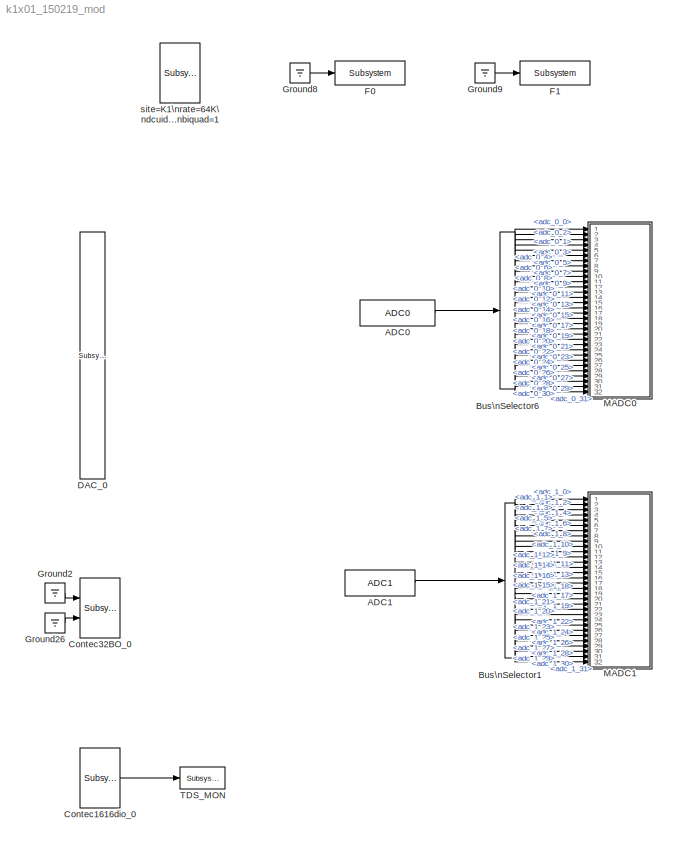
MODEL k1x01_150219_mod
KIND model
BLOCK [Reference] ADC0  REF=cdsAdcx0/ADC0
  AttributesFormatString = %<Description>\\n%<Tag>
  Description = type-GSC_16AI64SSA\ncard_num=0
  Ports = [0, 1]
  SID = 960
  SourceBlock = cdsAdcx0/ADC0
  SourceType = SubSystem
  Tag = cdsAdc
BLOCK [Reference] ADC1  REF=cdsAdcx1/ADC1
  AttributesFormatString = %<Description>\\n%<Tag>
  Description = type-GSC_16AI64SSA\ncard_num=1
  Ports = [0, 1]
  SID = 1073
  SourceBlock = cdsAdcx1/ADC1
  SourceType = SubSystem
  Tag = cdsAdc
BLOCK [BusSelector] Bus\nSelector1
  AttributesFormatString = %<Description>
  Description = ADC Selector
  OutputSignals = adc_1_0,adc_1_1,adc_1_2,adc_1_3,adc_1_4,adc_1_5,adc_1_6,adc_1_7,adc_1_8,adc_1_9,adc_1_10,adc_1_11,adc_1_12,adc_1_13,adc_1_14,adc_1_15,adc_1_16,adc_1_17,adc_1_18,adc_1_19,adc_1_20,adc_1_21,adc_1_22,adc_1_23,adc_1_24,adc_1_25,adc_1_26,adc_1_27,adc_1_28,adc_1_29,adc_1_30,adc_1_31
  Ports = [1, 32]
  SID = 1074
BLOCK [BusSelector] Bus\nSelector6
  AttributesFormatString = %<Description>
  Description = ADC Selector
  OutputSignals = adc_0_0,adc_0_1,adc_0_2,adc_0_3,adc_0_4,adc_0_5,adc_0_6,adc_0_7,adc_0_8,adc_0_9,adc_0_10,adc_0_11,adc_0_12,adc_0_13,adc_0_14,adc_0_15,adc_0_16,adc_0_17,adc_0_18,adc_0_19,adc_0_20,adc_0_21,adc_0_22,adc_0_23,adc_0_24,adc_0_25,adc_0_26,adc_0_27,adc_0_28,adc_0_29,adc_0_30,adc_0_31
  Ports = [1, 32]
  SID = 961
BLOCK [Reference] Contec1616dio_0  REF=cdsContec1616DIO/Subsystem
  AttributesFormatString = %<Tag>
  Ports = [1, 1]
  SID = 1070
  SourceBlock = cdsContec1616DIO/Subsystem
  SourceType = SubSystem
  Tag = cdsCDIO1616
BLOCK [Reference] Contec32BO_0  REF=cdsCDO32/Subsystem
  AttributesFormatString = %<Tag>
  Description = Contec32 bit binary output module driver
  Ports = [2]
  SID = 1066
  SourceBlock = cdsCDO32/Subsystem
  SourceType = SubSystem
  Tag = cdsCDO32
BLOCK [Reference] DAC_0  REF=dac/Subsystem  (lib defined in slx_40ef132df75b, slx_b7657ccccc5b, +4 more)
  AttributesFormatString = %<Description>
  Description = card_num=0
  Ports = [16]
  SID = 1067
  SourceBlock = dac/Subsystem
  SourceType = SubSystem
BLOCK [Reference] F0  REF=cdsFilt/Subsystem
  AttributesFormatString = %<Tag>
  Description = Purpose:                                                                                                                                                                                                                                  \nStandard CDS IIR filter module.                                                                                                                                     ...<+1302ch>
  Ports = [1, 1]
  SID = 962
  SourceBlock = cdsFilt/Subsystem
  SourceType = SubSystem
  Tag = cdsFilt
BLOCK [Reference] F1  REF=cdsFilt/Subsystem
  AttributesFormatString = %<Tag>
  Description = Purpose:                                                                                                                                                                                                                                  \nStandard CDS IIR filter module.                                                                                                                                     ...<+1302ch>
  Ports = [1, 1]
  SID = 963
  SourceBlock = cdsFilt/Subsystem
  SourceType = SubSystem
  Tag = cdsFilt
BLOCK [Ground] Ground2
  SID = 1068
BLOCK [Ground] Ground26
  SID = 1069
BLOCK [Ground] Ground8
  SID = 964
BLOCK [Ground] Ground9
  SID = 965
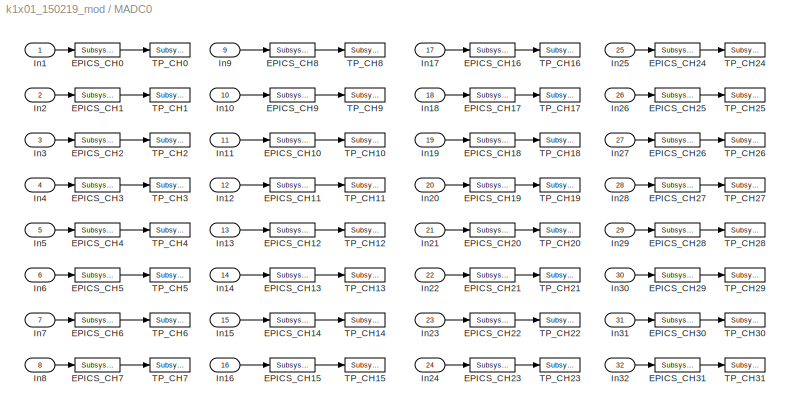
BLOCK [SubSystem] MADC0
  FunctionWithSeparateData = off
  MaskHideContents = off
  MinAlgLoopOccurrences = off
  Opaque = off
  Ports = [32]
  PropExecContextOutsideSubsystem = off
  RTWSystemCode = Auto
  RequestExecContextInheritance = off
  SID = 966
BLOCK [Reference] MADC0/EPICS_CH0  REF=cdsEpicsOut/Subsystem
  AttributesFormatString = %<Tag>
  Description = Purpose:                                          \nOutput a FE signal to an EPICS channel.           \n                                                  \nOperation:                                        \nTakes input value and passes it to EPICS record.  \n                                                  \nUsage:                                            \nName the part with the desired EPICS...<+14ch>  <repeated x65 — deduplicated; at blocks: EPICS_CH0, EPICS_CH1, EPICS_CH10, EPICS_CH11, EPICS_CH12, EPICS_CH13, EPICS_CH14, EPICS_CH15, EPICS_CH16, EPICS_CH17, EPICS_CH18, EPICS_CH19, EPICS_CH2, EPICS_CH20, EPICS_CH21, EPICS_CH22, +49 more>
  Ports = [1, 1]
  SID = 999
  SourceBlock = cdsEpicsOut/Subsystem
  SourceType = SubSystem
  Tag = cdsEpicsOutput
BLOCK [Reference] MADC0/EPICS_CH1  REF=cdsEpicsOut/Subsystem
  AttributesFormatString = %<Tag>
  Ports = [1, 1]
  SID = 1000
  SourceBlock = cdsEpicsOut/Subsystem
  SourceType = SubSystem
  Tag = cdsEpicsOutput
BLOCK [Reference] MADC0/EPICS_CH10  REF=cdsEpicsOut/Subsystem
  AttributesFormatString = %<Tag>
  Ports = [1, 1]
  SID = 1001
  SourceBlock = cdsEpicsOut/Subsystem
  SourceType = SubSystem
  Tag = cdsEpicsOutput
BLOCK [Reference] MADC0/EPICS_CH11  REF=cdsEpicsOut/Subsystem
  AttributesFormatString = %<Tag>
  Ports = [1, 1]
  SID = 1002
  SourceBlock = cdsEpicsOut/Subsystem
  SourceType = SubSystem
  Tag = cdsEpicsOutput
BLOCK [Reference] MADC0/EPICS_CH12  REF=cdsEpicsOut/Subsystem
  AttributesFormatString = %<Tag>
  Ports = [1, 1]
  SID = 1003
  SourceBlock = cdsEpicsOut/Subsystem
  SourceType = SubSystem
  Tag = cdsEpicsOutput
BLOCK [Reference] MADC0/EPICS_CH13  REF=cdsEpicsOut/Subsystem
  AttributesFormatString = %<Tag>
  Ports = [1, 1]
  SID = 1004
  SourceBlock = cdsEpicsOut/Subsystem
  SourceType = SubSystem
  Tag = cdsEpicsOutput
BLOCK [Reference] MADC0/EPICS_CH14  REF=cdsEpicsOut/Subsystem
  AttributesFormatString = %<Tag>
  Ports = [1, 1]
  SID = 1005
  SourceBlock = cdsEpicsOut/Subsystem
  SourceType = SubSystem
  Tag = cdsEpicsOutput
BLOCK [Reference] MADC0/EPICS_CH15  REF=cdsEpicsOut/Subsystem
  AttributesFormatString = %<Tag>
  Ports = [1, 1]
  SID = 1006
  SourceBlock = cdsEpicsOut/Subsystem
  SourceType = SubSystem
  Tag = cdsEpicsOutput
BLOCK [Reference] MADC0/EPICS_CH16  REF=cdsEpicsOut/Subsystem
  AttributesFormatString = %<Tag>
  Ports = [1, 1]
  SID = 1007
  SourceBlock = cdsEpicsOut/Subsystem
  SourceType = SubSystem
  Tag = cdsEpicsOutput
BLOCK [Reference] MADC0/EPICS_CH17  REF=cdsEpicsOut/Subsystem
  AttributesFormatString = %<Tag>
  Ports = [1, 1]
  SID = 1008
  SourceBlock = cdsEpicsOut/Subsystem
  SourceType = SubSystem
  Tag = cdsEpicsOutput
BLOCK [Reference] MADC0/EPICS_CH18  REF=cdsEpicsOut/Subsystem
  AttributesFormatString = %<Tag>
  Ports = [1, 1]
  SID = 1009
  SourceBlock = cdsEpicsOut/Subsystem
  SourceType = SubSystem
  Tag = cdsEpicsOutput
BLOCK [Reference] MADC0/EPICS_CH19  REF=cdsEpicsOut/Subsystem
  AttributesFormatString = %<Tag>
  Ports = [1, 1]
  SID = 1010
  SourceBlock = cdsEpicsOut/Subsystem
  SourceType = SubSystem
  Tag = cdsEpicsOutput
BLOCK [Reference] MADC0/EPICS_CH2  REF=cdsEpicsOut/Subsystem
  AttributesFormatString = %<Tag>
  Ports = [1, 1]
  SID = 1011
  SourceBlock = cdsEpicsOut/Subsystem
  SourceType = SubSystem
  Tag = cdsEpicsOutput
BLOCK [Reference] MADC0/EPICS_CH20  REF=cdsEpicsOut/Subsystem
  AttributesFormatString = %<Tag>
  Ports = [1, 1]
  SID = 1012
  SourceBlock = cdsEpicsOut/Subsystem
  SourceType = SubSystem
  Tag = cdsEpicsOutput
BLOCK [Reference] MADC0/EPICS_CH21  REF=cdsEpicsOut/Subsystem
  AttributesFormatString = %<Tag>
  Ports = [1, 1]
  SID = 1013
  SourceBlock = cdsEpicsOut/Subsystem
  SourceType = SubSystem
  Tag = cdsEpicsOutput
BLOCK [Reference] MADC0/EPICS_CH22  REF=cdsEpicsOut/Subsystem
  AttributesFormatString = %<Tag>
  Ports = [1, 1]
  SID = 1014
  SourceBlock = cdsEpicsOut/Subsystem
  SourceType = SubSystem
  Tag = cdsEpicsOutput
BLOCK [Reference] MADC0/EPICS_CH23  REF=cdsEpicsOut/Subsystem
  AttributesFormatString = %<Tag>
  Ports = [1, 1]
  SID = 1015
  SourceBlock = cdsEpicsOut/Subsystem
  SourceType = SubSystem
  Tag = cdsEpicsOutput
BLOCK [Reference] MADC0/EPICS_CH24  REF=cdsEpicsOut/Subsystem
  AttributesFormatString = %<Tag>
  Ports = [1, 1]
  SID = 1016
  SourceBlock = cdsEpicsOut/Subsystem
  SourceType = SubSystem
  Tag = cdsEpicsOutput
BLOCK [Reference] MADC0/EPICS_CH25  REF=cdsEpicsOut/Subsystem
  AttributesFormatString = %<Tag>
  Ports = [1, 1]
  SID = 1017
  SourceBlock = cdsEpicsOut/Subsystem
  SourceType = SubSystem
  Tag = cdsEpicsOutput
BLOCK [Reference] MADC0/EPICS_CH26  REF=cdsEpicsOut/Subsystem
  AttributesFormatString = %<Tag>
  Ports = [1, 1]
  SID = 1018
  SourceBlock = cdsEpicsOut/Subsystem
  SourceType = SubSystem
  Tag = cdsEpicsOutput
BLOCK [Reference] MADC0/EPICS_CH27  REF=cdsEpicsOut/Subsystem
  AttributesFormatString = %<Tag>
  Ports = [1, 1]
  SID = 1019
  SourceBlock = cdsEpicsOut/Subsystem
  SourceType = SubSystem
  Tag = cdsEpicsOutput
BLOCK [Reference] MADC0/EPICS_CH28  REF=cdsEpicsOut/Subsystem
  AttributesFormatString = %<Tag>
  Ports = [1, 1]
  SID = 1020
  SourceBlock = cdsEpicsOut/Subsystem
  SourceType = SubSystem
  Tag = cdsEpicsOutput
BLOCK [Reference] MADC0/EPICS_CH29  REF=cdsEpicsOut/Subsystem
  AttributesFormatString = %<Tag>
  Ports = [1, 1]
  SID = 1021
  SourceBlock = cdsEpicsOut/Subsystem
  SourceType = SubSystem
  Tag = cdsEpicsOutput
BLOCK [Reference] MADC0/EPICS_CH3  REF=cdsEpicsOut/Subsystem
  AttributesFormatString = %<Tag>
  Ports = [1, 1]
  SID = 1022
  SourceBlock = cdsEpicsOut/Subsystem
  SourceType = SubSystem
  Tag = cdsEpicsOutput
BLOCK [Reference] MADC0/EPICS_CH30  REF=cdsEpicsOut/Subsystem
  AttributesFormatString = %<Tag>
  Ports = [1, 1]
  SID = 1023
  SourceBlock = cdsEpicsOut/Subsystem
  SourceType = SubSystem
  Tag = cdsEpicsOutput
BLOCK [Reference] MADC0/EPICS_CH31  REF=cdsEpicsOut/Subsystem
  AttributesFormatString = %<Tag>
  Ports = [1, 1]
  SID = 1024
  SourceBlock = cdsEpicsOut/Subsystem
  SourceType = SubSystem
  Tag = cdsEpicsOutput
BLOCK [Reference] MADC0/EPICS_CH4  REF=cdsEpicsOut/Subsystem
  AttributesFormatString = %<Tag>
  Ports = [1, 1]
  SID = 1025
  SourceBlock = cdsEpicsOut/Subsystem
  SourceType = SubSystem
  Tag = cdsEpicsOutput
BLOCK [Reference] MADC0/EPICS_CH5  REF=cdsEpicsOut/Subsystem
  AttributesFormatString = %<Tag>
  Ports = [1, 1]
  SID = 1026
  SourceBlock = cdsEpicsOut/Subsystem
  SourceType = SubSystem
  Tag = cdsEpicsOutput
BLOCK [Reference] MADC0/EPICS_CH6  REF=cdsEpicsOut/Subsystem
  AttributesFormatString = %<Tag>
  Ports = [1, 1]
  SID = 1027
  SourceBlock = cdsEpicsOut/Subsystem
  SourceType = SubSystem
  Tag = cdsEpicsOutput
BLOCK [Reference] MADC0/EPICS_CH7  REF=cdsEpicsOut/Subsystem
  AttributesFormatString = %<Tag>
  Ports = [1, 1]
  SID = 1028
  SourceBlock = cdsEpicsOut/Subsystem
  SourceType = SubSystem
  Tag = cdsEpicsOutput
BLOCK [Reference] MADC0/EPICS_CH8  REF=cdsEpicsOut/Subsystem
  AttributesFormatString = %<Tag>
  Ports = [1, 1]
  SID = 1029
  SourceBlock = cdsEpicsOut/Subsystem
  SourceType = SubSystem
  Tag = cdsEpicsOutput
BLOCK [Reference] MADC0/EPICS_CH9  REF=cdsEpicsOut/Subsystem
  AttributesFormatString = %<Tag>
  Ports = [1, 1]
  SID = 1030
  SourceBlock = cdsEpicsOut/Subsystem
  SourceType = SubSystem
  Tag = cdsEpicsOutput
BLOCK [Inport] MADC0/In1
  IconDisplay = Port number
  SID = 967
BLOCK [Inport] MADC0/In10
  IconDisplay = Port number
  Port = 10
  SID = 976
BLOCK [Inport] MADC0/In11
  IconDisplay = Port number
  Port = 11
  SID = 977
BLOCK [Inport] MADC0/In12
  IconDisplay = Port number
  Port = 12
  SID = 978
BLOCK [Inport] MADC0/In13
  IconDisplay = Port number
  Port = 13
  SID = 979
BLOCK [Inport] MADC0/In14
  IconDisplay = Port number
  Port = 14
  SID = 980
BLOCK [Inport] MADC0/In15
  IconDisplay = Port number
  Port = 15
  SID = 981
BLOCK [Inport] MADC0/In16
  IconDisplay = Port number
  Port = 16
  SID = 982
BLOCK [Inport] MADC0/In17
  IconDisplay = Port number
  Port = 17
  SID = 983
BLOCK [Inport] MADC0/In18
  IconDisplay = Port number
  Port = 18
  SID = 984
BLOCK [Inport] MADC0/In19
  IconDisplay = Port number
  Port = 19
  SID = 985
BLOCK [Inport] MADC0/In2
  IconDisplay = Port number
  Port = 2
  SID = 968
BLOCK [Inport] MADC0/In20
  IconDisplay = Port number
  Port = 20
  SID = 986
BLOCK [Inport] MADC0/In21
  IconDisplay = Port number
  Port = 21
  SID = 987
BLOCK [Inport] MADC0/In22
  IconDisplay = Port number
  Port = 22
  SID = 988
BLOCK [Inport] MADC0/In23
  IconDisplay = Port number
  Port = 23
  SID = 989
BLOCK [Inport] MADC0/In24
  IconDisplay = Port number
  Port = 24
  SID = 990
BLOCK [Inport] MADC0/In25
  IconDisplay = Port number
  Port = 25
  SID = 991
BLOCK [Inport] MADC0/In26
  IconDisplay = Port number
  Port = 26
  SID = 992
BLOCK [Inport] MADC0/In27
  IconDisplay = Port number
  Port = 27
  SID = 993
BLOCK [Inport] MADC0/In28
  IconDisplay = Port number
  Port = 28
  SID = 994
BLOCK [Inport] MADC0/In29
  IconDisplay = Port number
  Port = 29
  SID = 995
BLOCK [Inport] MADC0/In3
  IconDisplay = Port number
  Port = 3
  SID = 969
BLOCK [Inport] MADC0/In30
  IconDisplay = Port number
  Port = 30
  SID = 996
BLOCK [Inport] MADC0/In31
  IconDisplay = Port number
  Port = 31
  SID = 997
BLOCK [Inport] MADC0/In32
  IconDisplay = Port number
  Port = 32
  SID = 998
BLOCK [Inport] MADC0/In4
  IconDisplay = Port number
  Port = 4
  SID = 970
BLOCK [Inport] MADC0/In5
  IconDisplay = Port number
  Port = 5
  SID = 971
BLOCK [Inport] MADC0/In6
  IconDisplay = Port number
  Port = 6
  SID = 972
BLOCK [Inport] MADC0/In7
  IconDisplay = Port number
  Port = 7
  SID = 973
BLOCK [Inport] MADC0/In8
  IconDisplay = Port number
  Port = 8
  SID = 974
BLOCK [Inport] MADC0/In9
  IconDisplay = Port number
  Port = 9
  SID = 975
BLOCK [Reference] MADC0/TP_CH0  REF=cdsTP/Subsystem
  AttributesFormatString = %<Tag>
  Ports = [1]
  SID = 1031
  SourceBlock = cdsTP/Subsystem
  SourceType = SubSystem
  Tag = Test Point
BLOCK [Reference] MADC0/TP_CH1  REF=cdsTP/Subsystem
  AttributesFormatString = %<Tag>
  Ports = [1]
  SID = 1032
  SourceBlock = cdsTP/Subsystem
  SourceType = SubSystem
  Tag = Test Point
BLOCK [Reference] MADC0/TP_CH10  REF=cdsTP/Subsystem
  AttributesFormatString = %<Tag>
  Ports = [1]
  SID = 1033
  SourceBlock = cdsTP/Subsystem
  SourceType = SubSystem
  Tag = Test Point
BLOCK [Reference] MADC0/TP_CH11  REF=cdsTP/Subsystem
  AttributesFormatString = %<Tag>
  Ports = [1]
  SID = 1034
  SourceBlock = cdsTP/Subsystem
  SourceType = SubSystem
  Tag = Test Point
BLOCK [Reference] MADC0/TP_CH12  REF=cdsTP/Subsystem
  AttributesFormatString = %<Tag>
  Ports = [1]
  SID = 1035
  SourceBlock = cdsTP/Subsystem
  SourceType = SubSystem
  Tag = Test Point
BLOCK [Reference] MADC0/TP_CH13  REF=cdsTP/Subsystem
  AttributesFormatString = %<Tag>
  Ports = [1]
  SID = 1036
  SourceBlock = cdsTP/Subsystem
  SourceType = SubSystem
  Tag = Test Point
BLOCK [Reference] MADC0/TP_CH14  REF=cdsTP/Subsystem
  AttributesFormatString = %<Tag>
  Ports = [1]
  SID = 1037
  SourceBlock = cdsTP/Subsystem
  SourceType = SubSystem
  Tag = Test Point
BLOCK [Reference] MADC0/TP_CH15  REF=cdsTP/Subsystem
  AttributesFormatString = %<Tag>
  Ports = [1]
  SID = 1038
  SourceBlock = cdsTP/Subsystem
  SourceType = SubSystem
  Tag = Test Point
BLOCK [Reference] MADC0/TP_CH16  REF=cdsTP/Subsystem
  AttributesFormatString = %<Tag>
  Ports = [1]
  SID = 1039
  SourceBlock = cdsTP/Subsystem
  SourceType = SubSystem
  Tag = Test Point
BLOCK [Reference] MADC0/TP_CH17  REF=cdsTP/Subsystem
  AttributesFormatString = %<Tag>
  Ports = [1]
  SID = 1040
  SourceBlock = cdsTP/Subsystem
  SourceType = SubSystem
  Tag = Test Point
BLOCK [Reference] MADC0/TP_CH18  REF=cdsTP/Subsystem
  AttributesFormatString = %<Tag>
  Ports = [1]
  SID = 1041
  SourceBlock = cdsTP/Subsystem
  SourceType = SubSystem
  Tag = Test Point
BLOCK [Reference] MADC0/TP_CH19  REF=cdsTP/Subsystem
  AttributesFormatString = %<Tag>
  Ports = [1]
  SID = 1042
  SourceBlock = cdsTP/Subsystem
  SourceType = SubSystem
  Tag = Test Point
BLOCK [Reference] MADC0/TP_CH2  REF=cdsTP/Subsystem
  AttributesFormatString = %<Tag>
  Ports = [1]
  SID = 1043
  SourceBlock = cdsTP/Subsystem
  SourceType = SubSystem
  Tag = Test Point
BLOCK [Reference] MADC0/TP_CH20  REF=cdsTP/Subsystem
  AttributesFormatString = %<Tag>
  Ports = [1]
  SID = 1044
  SourceBlock = cdsTP/Subsystem
  SourceType = SubSystem
  Tag = Test Point
BLOCK [Reference] MADC0/TP_CH21  REF=cdsTP/Subsystem
  AttributesFormatString = %<Tag>
  Ports = [1]
  SID = 1045
  SourceBlock = cdsTP/Subsystem
  SourceType = SubSystem
  Tag = Test Point
BLOCK [Reference] MADC0/TP_CH22  REF=cdsTP/Subsystem
  AttributesFormatString = %<Tag>
  Ports = [1]
  SID = 1046
  SourceBlock = cdsTP/Subsystem
  SourceType = SubSystem
  Tag = Test Point
BLOCK [Reference] MADC0/TP_CH23  REF=cdsTP/Subsystem
  AttributesFormatString = %<Tag>
  Ports = [1]
  SID = 1047
  SourceBlock = cdsTP/Subsystem
  SourceType = SubSystem
  Tag = Test Point
BLOCK [Reference] MADC0/TP_CH24  REF=cdsTP/Subsystem
  AttributesFormatString = %<Tag>
  Ports = [1]
  SID = 1048
  SourceBlock = cdsTP/Subsystem
  SourceType = SubSystem
  Tag = Test Point
BLOCK [Reference] MADC0/TP_CH25  REF=cdsTP/Subsystem
  AttributesFormatString = %<Tag>
  Ports = [1]
  SID = 1049
  SourceBlock = cdsTP/Subsystem
  SourceType = SubSystem
  Tag = Test Point
BLOCK [Reference] MADC0/TP_CH26  REF=cdsTP/Subsystem
  AttributesFormatString = %<Tag>
  Ports = [1]
  SID = 1050
  SourceBlock = cdsTP/Subsystem
  SourceType = SubSystem
  Tag = Test Point
BLOCK [Reference] MADC0/TP_CH27  REF=cdsTP/Subsystem
  AttributesFormatString = %<Tag>
  Ports = [1]
  SID = 1051
  SourceBlock = cdsTP/Subsystem
  SourceType = SubSystem
  Tag = Test Point
BLOCK [Reference] MADC0/TP_CH28  REF=cdsTP/Subsystem
  AttributesFormatString = %<Tag>
  Ports = [1]
  SID = 1052
  SourceBlock = cdsTP/Subsystem
  SourceType = SubSystem
  Tag = Test Point
BLOCK [Reference] MADC0/TP_CH29  REF=cdsTP/Subsystem
  AttributesFormatString = %<Tag>
  Ports = [1]
  SID = 1053
  SourceBlock = cdsTP/Subsystem
  SourceType = SubSystem
  Tag = Test Point
BLOCK [Reference] MADC0/TP_CH3  REF=cdsTP/Subsystem
  AttributesFormatString = %<Tag>
  Ports = [1]
  SID = 1054
  SourceBlock = cdsTP/Subsystem
  SourceType = SubSystem
  Tag = Test Point
BLOCK [Reference] MADC0/TP_CH30  REF=cdsTP/Subsystem
  AttributesFormatString = %<Tag>
  Ports = [1]
  SID = 1055
  SourceBlock = cdsTP/Subsystem
  SourceType = SubSystem
  Tag = Test Point
BLOCK [Reference] MADC0/TP_CH31  REF=cdsTP/Subsystem
  AttributesFormatString = %<Tag>
  Ports = [1]
  SID = 1056
  SourceBlock = cdsTP/Subsystem
  SourceType = SubSystem
  Tag = Test Point
BLOCK [Reference] MADC0/TP_CH4  REF=cdsTP/Subsystem
  AttributesFormatString = %<Tag>
  Ports = [1]
  SID = 1057
  SourceBlock = cdsTP/Subsystem
  SourceType = SubSystem
  Tag = Test Point
BLOCK [Reference] MADC0/TP_CH5  REF=cdsTP/Subsystem
  AttributesFormatString = %<Tag>
  Ports = [1]
  SID = 1058
  SourceBlock = cdsTP/Subsystem
  SourceType = SubSystem
  Tag = Test Point
BLOCK [Reference] MADC0/TP_CH6  REF=cdsTP/Subsystem
  AttributesFormatString = %<Tag>
  Ports = [1]
  SID = 1059
  SourceBlock = cdsTP/Subsystem
  SourceType = SubSystem
  Tag = Test Point
BLOCK [Reference] MADC0/TP_CH7  REF=cdsTP/Subsystem
  AttributesFormatString = %<Tag>
  Ports = [1]
  SID = 1060
  SourceBlock = cdsTP/Subsystem
  SourceType = SubSystem
  Tag = Test Point
BLOCK [Reference] MADC0/TP_CH8  REF=cdsTP/Subsystem
  AttributesFormatString = %<Tag>
  Ports = [1]
  SID = 1061
  SourceBlock = cdsTP/Subsystem
  SourceType = SubSystem
  Tag = Test Point
BLOCK [Reference] MADC0/TP_CH9  REF=cdsTP/Subsystem
  AttributesFormatString = %<Tag>
  Ports = [1]
  SID = 1062
  SourceBlock = cdsTP/Subsystem
  SourceType = SubSystem
  Tag = Test Point
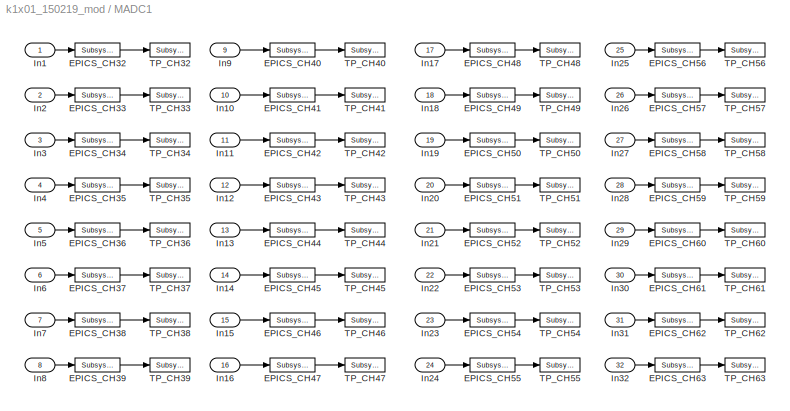
BLOCK [SubSystem] MADC1
  FunctionWithSeparateData = off
  MaskHideContents = off
  MinAlgLoopOccurrences = off
  Opaque = off
  Ports = [32]
  PropExecContextOutsideSubsystem = off
  RTWSystemCode = Auto
  RequestExecContextInheritance = off
  SID = 1077
BLOCK [Reference] MADC1/EPICS_CH32  REF=cdsEpicsOut/Subsystem
  AttributesFormatString = %<Tag>
  Ports = [1, 1]
  SID = 1110
  SourceBlock = cdsEpicsOut/Subsystem
  SourceType = SubSystem
  Tag = cdsEpicsOutput
BLOCK [Reference] MADC1/EPICS_CH33  REF=cdsEpicsOut/Subsystem
  AttributesFormatString = %<Tag>
  Ports = [1, 1]
  SID = 1111
  SourceBlock = cdsEpicsOut/Subsystem
  SourceType = SubSystem
  Tag = cdsEpicsOutput
BLOCK [Reference] MADC1/EPICS_CH34  REF=cdsEpicsOut/Subsystem
  AttributesFormatString = %<Tag>
  Ports = [1, 1]
  SID = 1122
  SourceBlock = cdsEpicsOut/Subsystem
  SourceType = SubSystem
  Tag = cdsEpicsOutput
BLOCK [Reference] MADC1/EPICS_CH35  REF=cdsEpicsOut/Subsystem
  AttributesFormatString = %<Tag>
  Ports = [1, 1]
  SID = 1133
  SourceBlock = cdsEpicsOut/Subsystem
  SourceType = SubSystem
  Tag = cdsEpicsOutput
BLOCK [Reference] MADC1/EPICS_CH36  REF=cdsEpicsOut/Subsystem
  AttributesFormatString = %<Tag>
  Ports = [1, 1]
  SID = 1136
  SourceBlock = cdsEpicsOut/Subsystem
  SourceType = SubSystem
  Tag = cdsEpicsOutput
BLOCK [Reference] MADC1/EPICS_CH37  REF=cdsEpicsOut/Subsystem
  AttributesFormatString = %<Tag>
  Ports = [1, 1]
  SID = 1137
  SourceBlock = cdsEpicsOut/Subsystem
  SourceType = SubSystem
  Tag = cdsEpicsOutput
BLOCK [Reference] MADC1/EPICS_CH38  REF=cdsEpicsOut/Subsystem
  AttributesFormatString = %<Tag>
  Ports = [1, 1]
  SID = 1138
  SourceBlock = cdsEpicsOut/Subsystem
  SourceType = SubSystem
  Tag = cdsEpicsOutput
BLOCK [Reference] MADC1/EPICS_CH39  REF=cdsEpicsOut/Subsystem
  AttributesFormatString = %<Tag>
  Ports = [1, 1]
  SID = 1139
  SourceBlock = cdsEpicsOut/Subsystem
  SourceType = SubSystem
  Tag = cdsEpicsOutput
BLOCK [Reference] MADC1/EPICS_CH40  REF=cdsEpicsOut/Subsystem
  AttributesFormatString = %<Tag>
  Ports = [1, 1]
  SID = 1140
  SourceBlock = cdsEpicsOut/Subsystem
  SourceType = SubSystem
  Tag = cdsEpicsOutput
BLOCK [Reference] MADC1/EPICS_CH41  REF=cdsEpicsOut/Subsystem
  AttributesFormatString = %<Tag>
  Ports = [1, 1]
  SID = 1141
  SourceBlock = cdsEpicsOut/Subsystem
  SourceType = SubSystem
  Tag = cdsEpicsOutput
BLOCK [Reference] MADC1/EPICS_CH42  REF=cdsEpicsOut/Subsystem
  AttributesFormatString = %<Tag>
  Ports = [1, 1]
  SID = 1112
  SourceBlock = cdsEpicsOut/Subsystem
  SourceType = SubSystem
  Tag = cdsEpicsOutput
BLOCK [Reference] MADC1/EPICS_CH43  REF=cdsEpicsOut/Subsystem
  AttributesFormatString = %<Tag>
  Ports = [1, 1]
  SID = 1113
  SourceBlock = cdsEpicsOut/Subsystem
  SourceType = SubSystem
  Tag = cdsEpicsOutput
BLOCK [Reference] MADC1/EPICS_CH44  REF=cdsEpicsOut/Subsystem
  AttributesFormatString = %<Tag>
  Ports = [1, 1]
  SID = 1114
  SourceBlock = cdsEpicsOut/Subsystem
  SourceType = SubSystem
  Tag = cdsEpicsOutput
BLOCK [Reference] MADC1/EPICS_CH45  REF=cdsEpicsOut/Subsystem
  AttributesFormatString = %<Tag>
  Ports = [1, 1]
  SID = 1115
  SourceBlock = cdsEpicsOut/Subsystem
  SourceType = SubSystem
  Tag = cdsEpicsOutput
BLOCK [Reference] MADC1/EPICS_CH46  REF=cdsEpicsOut/Subsystem
  AttributesFormatString = %<Tag>
  Ports = [1, 1]
  SID = 1116
  SourceBlock = cdsEpicsOut/Subsystem
  SourceType = SubSystem
  Tag = cdsEpicsOutput
BLOCK [Reference] MADC1/EPICS_CH47  REF=cdsEpicsOut/Subsystem
  AttributesFormatString = %<Tag>
  Ports = [1, 1]
  SID = 1117
  SourceBlock = cdsEpicsOut/Subsystem
  SourceType = SubSystem
  Tag = cdsEpicsOutput
BLOCK [Reference] MADC1/EPICS_CH48  REF=cdsEpicsOut/Subsystem
  AttributesFormatString = %<Tag>
  Ports = [1, 1]
  SID = 1118
  SourceBlock = cdsEpicsOut/Subsystem
  SourceType = SubSystem
  Tag = cdsEpicsOutput
BLOCK [Reference] MADC1/EPICS_CH49  REF=cdsEpicsOut/Subsystem
  AttributesFormatString = %<Tag>
  Ports = [1, 1]
  SID = 1119
  SourceBlock = cdsEpicsOut/Subsystem
  SourceType = SubSystem
  Tag = cdsEpicsOutput
BLOCK [Reference] MADC1/EPICS_CH50  REF=cdsEpicsOut/Subsystem
  AttributesFormatString = %<Tag>
  Ports = [1, 1]
  SID = 1120
  SourceBlock = cdsEpicsOut/Subsystem
  SourceType = SubSystem
  Tag = cdsEpicsOutput
BLOCK [Reference] MADC1/EPICS_CH51  REF=cdsEpicsOut/Subsystem
  AttributesFormatString = %<Tag>
  Ports = [1, 1]
  SID = 1121
  SourceBlock = cdsEpicsOut/Subsystem
  SourceType = SubSystem
  Tag = cdsEpicsOutput
BLOCK [Reference] MADC1/EPICS_CH52  REF=cdsEpicsOut/Subsystem
  AttributesFormatString = %<Tag>
  Ports = [1, 1]
  SID = 1123
  SourceBlock = cdsEpicsOut/Subsystem
  SourceType = SubSystem
  Tag = cdsEpicsOutput
BLOCK [Reference] MADC1/EPICS_CH53  REF=cdsEpicsOut/Subsystem
  AttributesFormatString = %<Tag>
  Ports = [1, 1]
  SID = 1124
  SourceBlock = cdsEpicsOut/Subsystem
  SourceType = SubSystem
  Tag = cdsEpicsOutput
BLOCK [Reference] MADC1/EPICS_CH54  REF=cdsEpicsOut/Subsystem
  AttributesFormatString = %<Tag>
  Ports = [1, 1]
  SID = 1125
  SourceBlock = cdsEpicsOut/Subsystem
  SourceType = SubSystem
  Tag = cdsEpicsOutput
BLOCK [Reference] MADC1/EPICS_CH55  REF=cdsEpicsOut/Subsystem
  AttributesFormatString = %<Tag>
  Ports = [1, 1]
  SID = 1126
  SourceBlock = cdsEpicsOut/Subsystem
  SourceType = SubSystem
  Tag = cdsEpicsOutput
BLOCK [Reference] MADC1/EPICS_CH56  REF=cdsEpicsOut/Subsystem
  AttributesFormatString = %<Tag>
  Ports = [1, 1]
  SID = 1127
  SourceBlock = cdsEpicsOut/Subsystem
  SourceType = SubSystem
  Tag = cdsEpicsOutput
BLOCK [Reference] MADC1/EPICS_CH57  REF=cdsEpicsOut/Subsystem
  AttributesFormatString = %<Tag>
  Ports = [1, 1]
  SID = 1128
  SourceBlock = cdsEpicsOut/Subsystem
  SourceType = SubSystem
  Tag = cdsEpicsOutput
BLOCK [Reference] MADC1/EPICS_CH58  REF=cdsEpicsOut/Subsystem
  AttributesFormatString = %<Tag>
  Ports = [1, 1]
  SID = 1129
  SourceBlock = cdsEpicsOut/Subsystem
  SourceType = SubSystem
  Tag = cdsEpicsOutput
BLOCK [Reference] MADC1/EPICS_CH59  REF=cdsEpicsOut/Subsystem
  AttributesFormatString = %<Tag>
  Ports = [1, 1]
  SID = 1130
  SourceBlock = cdsEpicsOut/Subsystem
  SourceType = SubSystem
  Tag = cdsEpicsOutput
BLOCK [Reference] MADC1/EPICS_CH60  REF=cdsEpicsOut/Subsystem
  AttributesFormatString = %<Tag>
  Ports = [1, 1]
  SID = 1131
  SourceBlock = cdsEpicsOut/Subsystem
  SourceType = SubSystem
  Tag = cdsEpicsOutput
BLOCK [Reference] MADC1/EPICS_CH61  REF=cdsEpicsOut/Subsystem
  AttributesFormatString = %<Tag>
  Ports = [1, 1]
  SID = 1132
  SourceBlock = cdsEpicsOut/Subsystem
  SourceType = SubSystem
  Tag = cdsEpicsOutput
BLOCK [Reference] MADC1/EPICS_CH62  REF=cdsEpicsOut/Subsystem
  AttributesFormatString = %<Tag>
  Ports = [1, 1]
  SID = 1134
  SourceBlock = cdsEpicsOut/Subsystem
  SourceType = SubSystem
  Tag = cdsEpicsOutput
BLOCK [Reference] MADC1/EPICS_CH63  REF=cdsEpicsOut/Subsystem
  AttributesFormatString = %<Tag>
  Ports = [1, 1]
  SID = 1135
  SourceBlock = cdsEpicsOut/Subsystem
  SourceType = SubSystem
  Tag = cdsEpicsOutput
BLOCK [Inport] MADC1/In1
  IconDisplay = Port number
  SID = 1078
BLOCK [Inport] MADC1/In10
  IconDisplay = Port number
  Port = 10
  SID = 1087
BLOCK [Inport] MADC1/In11
  IconDisplay = Port number
  Port = 11
  SID = 1088
BLOCK [Inport] MADC1/In12
  IconDisplay = Port number
  Port = 12
  SID = 1089
BLOCK [Inport] MADC1/In13
  IconDisplay = Port number
  Port = 13
  SID = 1090
BLOCK [Inport] MADC1/In14
  IconDisplay = Port number
  Port = 14
  SID = 1091
BLOCK [Inport] MADC1/In15
  IconDisplay = Port number
  Port = 15
  SID = 1092
BLOCK [Inport] MADC1/In16
  IconDisplay = Port number
  Port = 16
  SID = 1093
BLOCK [Inport] MADC1/In17
  IconDisplay = Port number
  Port = 17
  SID = 1094
BLOCK [Inport] MADC1/In18
  IconDisplay = Port number
  Port = 18
  SID = 1095
BLOCK [Inport] MADC1/In19
  IconDisplay = Port number
  Port = 19
  SID = 1096
BLOCK [Inport] MADC1/In2
  IconDisplay = Port number
  Port = 2
  SID = 1079
BLOCK [Inport] MADC1/In20
  IconDisplay = Port number
  Port = 20
  SID = 1097
BLOCK [Inport] MADC1/In21
  IconDisplay = Port number
  Port = 21
  SID = 1098
BLOCK [Inport] MADC1/In22
  IconDisplay = Port number
  Port = 22
  SID = 1099
BLOCK [Inport] MADC1/In23
  IconDisplay = Port number
  Port = 23
  SID = 1100
BLOCK [Inport] MADC1/In24
  IconDisplay = Port number
  Port = 24
  SID = 1101
BLOCK [Inport] MADC1/In25
  IconDisplay = Port number
  Port = 25
  SID = 1102
BLOCK [Inport] MADC1/In26
  IconDisplay = Port number
  Port = 26
  SID = 1103
BLOCK [Inport] MADC1/In27
  IconDisplay = Port number
  Port = 27
  SID = 1104
BLOCK [Inport] MADC1/In28
  IconDisplay = Port number
  Port = 28
  SID = 1105
BLOCK [Inport] MADC1/In29
  IconDisplay = Port number
  Port = 29
  SID = 1106
BLOCK [Inport] MADC1/In3
  IconDisplay = Port number
  Port = 3
  SID = 1080
BLOCK [Inport] MADC1/In30
  IconDisplay = Port number
  Port = 30
  SID = 1107
BLOCK [Inport] MADC1/In31
  IconDisplay = Port number
  Port = 31
  SID = 1108
BLOCK [Inport] MADC1/In32
  IconDisplay = Port number
  Port = 32
  SID = 1109
BLOCK [Inport] MADC1/In4
  IconDisplay = Port number
  Port = 4
  SID = 1081
BLOCK [Inport] MADC1/In5
  IconDisplay = Port number
  Port = 5
  SID = 1082
BLOCK [Inport] MADC1/In6
  IconDisplay = Port number
  Port = 6
  SID = 1083
BLOCK [Inport] MADC1/In7
  IconDisplay = Port number
  Port = 7
  SID = 1084
BLOCK [Inport] MADC1/In8
  IconDisplay = Port number
  Port = 8
  SID = 1085
BLOCK [Inport] MADC1/In9
  IconDisplay = Port number
  Port = 9
  SID = 1086
BLOCK [Reference] MADC1/TP_CH32  REF=cdsTP/Subsystem
  AttributesFormatString = %<Tag>
  Ports = [1]
  SID = 1142
  SourceBlock = cdsTP/Subsystem
  SourceType = SubSystem
  Tag = Test Point
BLOCK [Reference] MADC1/TP_CH33  REF=cdsTP/Subsystem
  AttributesFormatString = %<Tag>
  Ports = [1]
  SID = 1143
  SourceBlock = cdsTP/Subsystem
  SourceType = SubSystem
  Tag = Test Point
BLOCK [Reference] MADC1/TP_CH34  REF=cdsTP/Subsystem
  AttributesFormatString = %<Tag>
  Ports = [1]
  SID = 1154
  SourceBlock = cdsTP/Subsystem
  SourceType = SubSystem
  Tag = Test Point
BLOCK [Reference] MADC1/TP_CH35  REF=cdsTP/Subsystem
  AttributesFormatString = %<Tag>
  Ports = [1]
  SID = 1165
  SourceBlock = cdsTP/Subsystem
  SourceType = SubSystem
  Tag = Test Point
BLOCK [Reference] MADC1/TP_CH36  REF=cdsTP/Subsystem
  AttributesFormatString = %<Tag>
  Ports = [1]
  SID = 1168
  SourceBlock = cdsTP/Subsystem
  SourceType = SubSystem
  Tag = Test Point
BLOCK [Reference] MADC1/TP_CH37  REF=cdsTP/Subsystem
  AttributesFormatString = %<Tag>
  Ports = [1]
  SID = 1169
  SourceBlock = cdsTP/Subsystem
  SourceType = SubSystem
  Tag = Test Point
BLOCK [Reference] MADC1/TP_CH38  REF=cdsTP/Subsystem
  AttributesFormatString = %<Tag>
  Ports = [1]
  SID = 1170
  SourceBlock = cdsTP/Subsystem
  SourceType = SubSystem
  Tag = Test Point
BLOCK [Reference] MADC1/TP_CH39  REF=cdsTP/Subsystem
  AttributesFormatString = %<Tag>
  Ports = [1]
  SID = 1171
  SourceBlock = cdsTP/Subsystem
  SourceType = SubSystem
  Tag = Test Point
BLOCK [Reference] MADC1/TP_CH40  REF=cdsTP/Subsystem
  AttributesFormatString = %<Tag>
  Ports = [1]
  SID = 1172
  SourceBlock = cdsTP/Subsystem
  SourceType = SubSystem
  Tag = Test Point
BLOCK [Reference] MADC1/TP_CH41  REF=cdsTP/Subsystem
  AttributesFormatString = %<Tag>
  Ports = [1]
  SID = 1173
  SourceBlock = cdsTP/Subsystem
  SourceType = SubSystem
  Tag = Test Point
BLOCK [Reference] MADC1/TP_CH42  REF=cdsTP/Subsystem
  AttributesFormatString = %<Tag>
  Ports = [1]
  SID = 1144
  SourceBlock = cdsTP/Subsystem
  SourceType = SubSystem
  Tag = Test Point
BLOCK [Reference] MADC1/TP_CH43  REF=cdsTP/Subsystem
  AttributesFormatString = %<Tag>
  Ports = [1]
  SID = 1145
  SourceBlock = cdsTP/Subsystem
  SourceType = SubSystem
  Tag = Test Point
BLOCK [Reference] MADC1/TP_CH44  REF=cdsTP/Subsystem
  AttributesFormatString = %<Tag>
  Ports = [1]
  SID = 1146
  SourceBlock = cdsTP/Subsystem
  SourceType = SubSystem
  Tag = Test Point
BLOCK [Reference] MADC1/TP_CH45  REF=cdsTP/Subsystem
  AttributesFormatString = %<Tag>
  Ports = [1]
  SID = 1147
  SourceBlock = cdsTP/Subsystem
  SourceType = SubSystem
  Tag = Test Point
BLOCK [Reference] MADC1/TP_CH46  REF=cdsTP/Subsystem
  AttributesFormatString = %<Tag>
  Ports = [1]
  SID = 1148
  SourceBlock = cdsTP/Subsystem
  SourceType = SubSystem
  Tag = Test Point
BLOCK [Reference] MADC1/TP_CH47  REF=cdsTP/Subsystem
  AttributesFormatString = %<Tag>
  Ports = [1]
  SID = 1149
  SourceBlock = cdsTP/Subsystem
  SourceType = SubSystem
  Tag = Test Point
BLOCK [Reference] MADC1/TP_CH48  REF=cdsTP/Subsystem
  AttributesFormatString = %<Tag>
  Ports = [1]
  SID = 1150
  SourceBlock = cdsTP/Subsystem
  SourceType = SubSystem
  Tag = Test Point
BLOCK [Reference] MADC1/TP_CH49  REF=cdsTP/Subsystem
  AttributesFormatString = %<Tag>
  Ports = [1]
  SID = 1151
  SourceBlock = cdsTP/Subsystem
  SourceType = SubSystem
  Tag = Test Point
BLOCK [Reference] MADC1/TP_CH50  REF=cdsTP/Subsystem
  AttributesFormatString = %<Tag>
  Ports = [1]
  SID = 1152
  SourceBlock = cdsTP/Subsystem
  SourceType = SubSystem
  Tag = Test Point
BLOCK [Reference] MADC1/TP_CH51  REF=cdsTP/Subsystem
  AttributesFormatString = %<Tag>
  Ports = [1]
  SID = 1153
  SourceBlock = cdsTP/Subsystem
  SourceType = SubSystem
  Tag = Test Point
BLOCK [Reference] MADC1/TP_CH52  REF=cdsTP/Subsystem
  AttributesFormatString = %<Tag>
  Ports = [1]
  SID = 1155
  SourceBlock = cdsTP/Subsystem
  SourceType = SubSystem
  Tag = Test Point
BLOCK [Reference] MADC1/TP_CH53  REF=cdsTP/Subsystem
  AttributesFormatString = %<Tag>
  Ports = [1]
  SID = 1156
  SourceBlock = cdsTP/Subsystem
  SourceType = SubSystem
  Tag = Test Point
BLOCK [Reference] MADC1/TP_CH54  REF=cdsTP/Subsystem
  AttributesFormatString = %<Tag>
  Ports = [1]
  SID = 1157
  SourceBlock = cdsTP/Subsystem
  SourceType = SubSystem
  Tag = Test Point
BLOCK [Reference] MADC1/TP_CH55  REF=cdsTP/Subsystem
  AttributesFormatString = %<Tag>
  Ports = [1]
  SID = 1158
  SourceBlock = cdsTP/Subsystem
  SourceType = SubSystem
  Tag = Test Point
BLOCK [Reference] MADC1/TP_CH56  REF=cdsTP/Subsystem
  AttributesFormatString = %<Tag>
  Ports = [1]
  SID = 1159
  SourceBlock = cdsTP/Subsystem
  SourceType = SubSystem
  Tag = Test Point
BLOCK [Reference] MADC1/TP_CH57  REF=cdsTP/Subsystem
  AttributesFormatString = %<Tag>
  Ports = [1]
  SID = 1160
  SourceBlock = cdsTP/Subsystem
  SourceType = SubSystem
  Tag = Test Point
BLOCK [Reference] MADC1/TP_CH58  REF=cdsTP/Subsystem
  AttributesFormatString = %<Tag>
  Ports = [1]
  SID = 1161
  SourceBlock = cdsTP/Subsystem
  SourceType = SubSystem
  Tag = Test Point
BLOCK [Reference] MADC1/TP_CH59  REF=cdsTP/Subsystem
  AttributesFormatString = %<Tag>
  Ports = [1]
  SID = 1162
  SourceBlock = cdsTP/Subsystem
  SourceType = SubSystem
  Tag = Test Point
BLOCK [Reference] MADC1/TP_CH60  REF=cdsTP/Subsystem
  AttributesFormatString = %<Tag>
  Ports = [1]
  SID = 1163
  SourceBlock = cdsTP/Subsystem
  SourceType = SubSystem
  Tag = Test Point
BLOCK [Reference] MADC1/TP_CH61  REF=cdsTP/Subsystem
  AttributesFormatString = %<Tag>
  Ports = [1]
  SID = 1164
  SourceBlock = cdsTP/Subsystem
  SourceType = SubSystem
  Tag = Test Point
BLOCK [Reference] MADC1/TP_CH62  REF=cdsTP/Subsystem
  AttributesFormatString = %<Tag>
  Ports = [1]
  SID = 1166
  SourceBlock = cdsTP/Subsystem
  SourceType = SubSystem
  Tag = Test Point
BLOCK [Reference] MADC1/TP_CH63  REF=cdsTP/Subsystem
  AttributesFormatString = %<Tag>
  Ports = [1]
  SID = 1167
  SourceBlock = cdsTP/Subsystem
  SourceType = SubSystem
  Tag = Test Point
BLOCK [Reference] TDS_MON  REF=cdsEpicsOut/Subsystem
  AttributesFormatString = %<Tag>
  Ports = [1, 1]
  SID = 1071
  SourceBlock = cdsEpicsOut/Subsystem
  SourceType = SubSystem
  Tag = cdsEpicsOutput
BLOCK [Reference] site=K1\nrate=64K\ndcuid=22\nshmem_daq=1\nadcMaster=1\nhost=standalone\nno_rfm_dma=1\nbiquad=1  REF=cdsParameters/Subsystem
  AttributesFormatString = %<Tag>
  Ports = [1, 1]
  SID = 1072
  SourceBlock = cdsParameters/Subsystem
  SourceType = SubSystem
  Tag = cdsParameters
LINE ADC0:1 -> Bus\nSelector6:1
LINE ADC1:1 -> Bus\nSelector1:1
LINE Bus\nSelector1:1 -> MADC1:1
LINE Bus\nSelector1:10 -> MADC1:10
LINE Bus\nSelector1:11 -> MADC1:11
LINE Bus\nSelector1:12 -> MADC1:12
LINE Bus\nSelector1:13 -> MADC1:13
LINE Bus\nSelector1:14 -> MADC1:14
LINE Bus\nSelector1:15 -> MADC1:15
LINE Bus\nSelector1:16 -> MADC1:16
LINE Bus\nSelector1:17 -> MADC1:17
LINE Bus\nSelector1:18 -> MADC1:18
LINE Bus\nSelector1:19 -> MADC1:19
LINE Bus\nSelector1:2 -> MADC1:2
LINE Bus\nSelector1:20 -> MADC1:20
LINE Bus\nSelector1:21 -> MADC1:21
LINE Bus\nSelector1:22 -> MADC1:22
LINE Bus\nSelector1:23 -> MADC1:23
LINE Bus\nSelector1:24 -> MADC1:24
LINE Bus\nSelector1:25 -> MADC1:25
LINE Bus\nSelector1:26 -> MADC1:26
LINE Bus\nSelector1:27 -> MADC1:27
LINE Bus\nSelector1:28 -> MADC1:28
LINE Bus\nSelector1:29 -> MADC1:29
LINE Bus\nSelector1:3 -> MADC1:3
LINE Bus\nSelector1:30 -> MADC1:30
LINE Bus\nSelector1:31 -> MADC1:31
LINE Bus\nSelector1:32 -> MADC1:32
LINE Bus\nSelector1:4 -> MADC1:4
LINE Bus\nSelector1:5 -> MADC1:5
LINE Bus\nSelector1:6 -> MADC1:6
LINE Bus\nSelector1:7 -> MADC1:7
LINE Bus\nSelector1:8 -> MADC1:8
LINE Bus\nSelector1:9 -> MADC1:9
LINE Bus\nSelector6:1 -> MADC0:1
LINE Bus\nSelector6:10 -> MADC0:10
LINE Bus\nSelector6:11 -> MADC0:11
LINE Bus\nSelector6:12 -> MADC0:12
LINE Bus\nSelector6:13 -> MADC0:13
LINE Bus\nSelector6:14 -> MADC0:14
LINE Bus\nSelector6:15 -> MADC0:15
LINE Bus\nSelector6:16 -> MADC0:16
LINE Bus\nSelector6:17 -> MADC0:17
LINE Bus\nSelector6:18 -> MADC0:18
LINE Bus\nSelector6:19 -> MADC0:19
LINE Bus\nSelector6:2 -> MADC0:2
LINE Bus\nSelector6:20 -> MADC0:20
LINE Bus\nSelector6:21 -> MADC0:21
LINE Bus\nSelector6:22 -> MADC0:22
LINE Bus\nSelector6:23 -> MADC0:23
LINE Bus\nSelector6:24 -> MADC0:24
LINE Bus\nSelector6:25 -> MADC0:25
LINE Bus\nSelector6:26 -> MADC0:26
LINE Bus\nSelector6:27 -> MADC0:27
LINE Bus\nSelector6:28 -> MADC0:28
LINE Bus\nSelector6:29 -> MADC0:29
LINE Bus\nSelector6:3 -> MADC0:3
LINE Bus\nSelector6:30 -> MADC0:30
LINE Bus\nSelector6:31 -> MADC0:31
LINE Bus\nSelector6:32 -> MADC0:32
LINE Bus\nSelector6:4 -> MADC0:4
LINE Bus\nSelector6:5 -> MADC0:5
LINE Bus\nSelector6:6 -> MADC0:6
LINE Bus\nSelector6:7 -> MADC0:7
LINE Bus\nSelector6:8 -> MADC0:8
LINE Bus\nSelector6:9 -> MADC0:9
LINE Contec1616dio_0:1 -> TDS_MON:1
LINE Ground26:1 -> Contec32BO_0:2
LINE Ground2:1 -> Contec32BO_0:1
LINE Ground8:1 -> F0:1
LINE Ground9:1 -> F1:1
LINE MADC0/EPICS_CH0:1 -> MADC0/TP_CH0:1
LINE MADC0/EPICS_CH10:1 -> MADC0/TP_CH10:1
LINE MADC0/EPICS_CH11:1 -> MADC0/TP_CH11:1
LINE MADC0/EPICS_CH12:1 -> MADC0/TP_CH12:1
LINE MADC0/EPICS_CH13:1 -> MADC0/TP_CH13:1
LINE MADC0/EPICS_CH14:1 -> MADC0/TP_CH14:1
LINE MADC0/EPICS_CH15:1 -> MADC0/TP_CH15:1
LINE MADC0/EPICS_CH16:1 -> MADC0/TP_CH16:1
LINE MADC0/EPICS_CH17:1 -> MADC0/TP_CH17:1
LINE MADC0/EPICS_CH18:1 -> MADC0/TP_CH18:1
LINE MADC0/EPICS_CH19:1 -> MADC0/TP_CH19:1
LINE MADC0/EPICS_CH1:1 -> MADC0/TP_CH1:1
LINE MADC0/EPICS_CH20:1 -> MADC0/TP_CH20:1
LINE MADC0/EPICS_CH21:1 -> MADC0/TP_CH21:1
LINE MADC0/EPICS_CH22:1 -> MADC0/TP_CH22:1
LINE MADC0/EPICS_CH23:1 -> MADC0/TP_CH23:1
LINE MADC0/EPICS_CH24:1 -> MADC0/TP_CH24:1
LINE MADC0/EPICS_CH25:1 -> MADC0/TP_CH25:1
LINE MADC0/EPICS_CH26:1 -> MADC0/TP_CH26:1
LINE MADC0/EPICS_CH27:1 -> MADC0/TP_CH27:1
LINE MADC0/EPICS_CH28:1 -> MADC0/TP_CH28:1
LINE MADC0/EPICS_CH29:1 -> MADC0/TP_CH29:1
LINE MADC0/EPICS_CH2:1 -> MADC0/TP_CH2:1
LINE MADC0/EPICS_CH30:1 -> MADC0/TP_CH30:1
LINE MADC0/EPICS_CH31:1 -> MADC0/TP_CH31:1
LINE MADC0/EPICS_CH3:1 -> MADC0/TP_CH3:1
LINE MADC0/EPICS_CH4:1 -> MADC0/TP_CH4:1
LINE MADC0/EPICS_CH5:1 -> MADC0/TP_CH5:1
LINE MADC0/EPICS_CH6:1 -> MADC0/TP_CH6:1
LINE MADC0/EPICS_CH7:1 -> MADC0/TP_CH7:1
LINE MADC0/EPICS_CH8:1 -> MADC0/TP_CH8:1
LINE MADC0/EPICS_CH9:1 -> MADC0/TP_CH9:1
LINE MADC0/In10:1 -> MADC0/EPICS_CH9:1
LINE MADC0/In11:1 -> MADC0/EPICS_CH10:1
LINE MADC0/In12:1 -> MADC0/EPICS_CH11:1
LINE MADC0/In13:1 -> MADC0/EPICS_CH12:1
LINE MADC0/In14:1 -> MADC0/EPICS_CH13:1
LINE MADC0/In15:1 -> MADC0/EPICS_CH14:1
LINE MADC0/In16:1 -> MADC0/EPICS_CH15:1
LINE MADC0/In17:1 -> MADC0/EPICS_CH16:1
LINE MADC0/In18:1 -> MADC0/EPICS_CH17:1
LINE MADC0/In19:1 -> MADC0/EPICS_CH18:1
LINE MADC0/In1:1 -> MADC0/EPICS_CH0:1
LINE MADC0/In20:1 -> MADC0/EPICS_CH19:1
LINE MADC0/In21:1 -> MADC0/EPICS_CH20:1
LINE MADC0/In22:1 -> MADC0/EPICS_CH21:1
LINE MADC0/In23:1 -> MADC0/EPICS_CH22:1
LINE MADC0/In24:1 -> MADC0/EPICS_CH23:1
LINE MADC0/In25:1 -> MADC0/EPICS_CH24:1
LINE MADC0/In26:1 -> MADC0/EPICS_CH25:1
LINE MADC0/In27:1 -> MADC0/EPICS_CH26:1
LINE MADC0/In28:1 -> MADC0/EPICS_CH27:1
LINE MADC0/In29:1 -> MADC0/EPICS_CH28:1
LINE MADC0/In2:1 -> MADC0/EPICS_CH1:1
LINE MADC0/In30:1 -> MADC0/EPICS_CH29:1
LINE MADC0/In31:1 -> MADC0/EPICS_CH30:1
LINE MADC0/In32:1 -> MADC0/EPICS_CH31:1
LINE MADC0/In3:1 -> MADC0/EPICS_CH2:1
LINE MADC0/In4:1 -> MADC0/EPICS_CH3:1
LINE MADC0/In5:1 -> MADC0/EPICS_CH4:1
LINE MADC0/In6:1 -> MADC0/EPICS_CH5:1
LINE MADC0/In7:1 -> MADC0/EPICS_CH6:1
LINE MADC0/In8:1 -> MADC0/EPICS_CH7:1
LINE MADC0/In9:1 -> MADC0/EPICS_CH8:1
LINE MADC1/EPICS_CH32:1 -> MADC1/TP_CH32:1
LINE MADC1/EPICS_CH33:1 -> MADC1/TP_CH33:1
LINE MADC1/EPICS_CH34:1 -> MADC1/TP_CH34:1
LINE MADC1/EPICS_CH35:1 -> MADC1/TP_CH35:1
LINE MADC1/EPICS_CH36:1 -> MADC1/TP_CH36:1
LINE MADC1/EPICS_CH37:1 -> MADC1/TP_CH37:1
LINE MADC1/EPICS_CH38:1 -> MADC1/TP_CH38:1
LINE MADC1/EPICS_CH39:1 -> MADC1/TP_CH39:1
LINE MADC1/EPICS_CH40:1 -> MADC1/TP_CH40:1
LINE MADC1/EPICS_CH41:1 -> MADC1/TP_CH41:1
LINE MADC1/EPICS_CH42:1 -> MADC1/TP_CH42:1
LINE MADC1/EPICS_CH43:1 -> MADC1/TP_CH43:1
LINE MADC1/EPICS_CH44:1 -> MADC1/TP_CH44:1
LINE MADC1/EPICS_CH45:1 -> MADC1/TP_CH45:1
LINE MADC1/EPICS_CH46:1 -> MADC1/TP_CH46:1
LINE MADC1/EPICS_CH47:1 -> MADC1/TP_CH47:1
LINE MADC1/EPICS_CH48:1 -> MADC1/TP_CH48:1
LINE MADC1/EPICS_CH49:1 -> MADC1/TP_CH49:1
LINE MADC1/EPICS_CH50:1 -> MADC1/TP_CH50:1
LINE MADC1/EPICS_CH51:1 -> MADC1/TP_CH51:1
LINE MADC1/EPICS_CH52:1 -> MADC1/TP_CH52:1
LINE MADC1/EPICS_CH53:1 -> MADC1/TP_CH53:1
LINE MADC1/EPICS_CH54:1 -> MADC1/TP_CH54:1
LINE MADC1/EPICS_CH55:1 -> MADC1/TP_CH55:1
LINE MADC1/EPICS_CH56:1 -> MADC1/TP_CH56:1
LINE MADC1/EPICS_CH57:1 -> MADC1/TP_CH57:1
LINE MADC1/EPICS_CH58:1 -> MADC1/TP_CH58:1
LINE MADC1/EPICS_CH59:1 -> MADC1/TP_CH59:1
LINE MADC1/EPICS_CH60:1 -> MADC1/TP_CH60:1
LINE MADC1/EPICS_CH61:1 -> MADC1/TP_CH61:1
LINE MADC1/EPICS_CH62:1 -> MADC1/TP_CH62:1
LINE MADC1/EPICS_CH63:1 -> MADC1/TP_CH63:1
LINE MADC1/In10:1 -> MADC1/EPICS_CH41:1
LINE MADC1/In11:1 -> MADC1/EPICS_CH42:1
LINE MADC1/In12:1 -> MADC1/EPICS_CH43:1
LINE MADC1/In13:1 -> MADC1/EPICS_CH44:1
LINE MADC1/In14:1 -> MADC1/EPICS_CH45:1
LINE MADC1/In15:1 -> MADC1/EPICS_CH46:1
LINE MADC1/In16:1 -> MADC1/EPICS_CH47:1
LINE MADC1/In17:1 -> MADC1/EPICS_CH48:1
LINE MADC1/In18:1 -> MADC1/EPICS_CH49:1
LINE MADC1/In19:1 -> MADC1/EPICS_CH50:1
LINE MADC1/In1:1 -> MADC1/EPICS_CH32:1
LINE MADC1/In20:1 -> MADC1/EPICS_CH51:1
LINE MADC1/In21:1 -> MADC1/EPICS_CH52:1
LINE MADC1/In22:1 -> MADC1/EPICS_CH53:1
LINE MADC1/In23:1 -> MADC1/EPICS_CH54:1
LINE MADC1/In24:1 -> MADC1/EPICS_CH55:1
LINE MADC1/In25:1 -> MADC1/EPICS_CH56:1
LINE MADC1/In26:1 -> MADC1/EPICS_CH57:1
LINE MADC1/In27:1 -> MADC1/EPICS_CH58:1
LINE MADC1/In28:1 -> MADC1/EPICS_CH59:1
LINE MADC1/In29:1 -> MADC1/EPICS_CH60:1
LINE MADC1/In2:1 -> MADC1/EPICS_CH33:1
LINE MADC1/In30:1 -> MADC1/EPICS_CH61:1
LINE MADC1/In31:1 -> MADC1/EPICS_CH62:1
LINE MADC1/In32:1 -> MADC1/EPICS_CH63:1
LINE MADC1/In3:1 -> MADC1/EPICS_CH34:1
LINE MADC1/In4:1 -> MADC1/EPICS_CH35:1
LINE MADC1/In5:1 -> MADC1/EPICS_CH36:1
LINE MADC1/In6:1 -> MADC1/EPICS_CH37:1
LINE MADC1/In7:1 -> MADC1/EPICS_CH38:1
LINE MADC1/In8:1 -> MADC1/EPICS_CH39:1
LINE MADC1/In9:1 -> MADC1/EPICS_CH40:1
